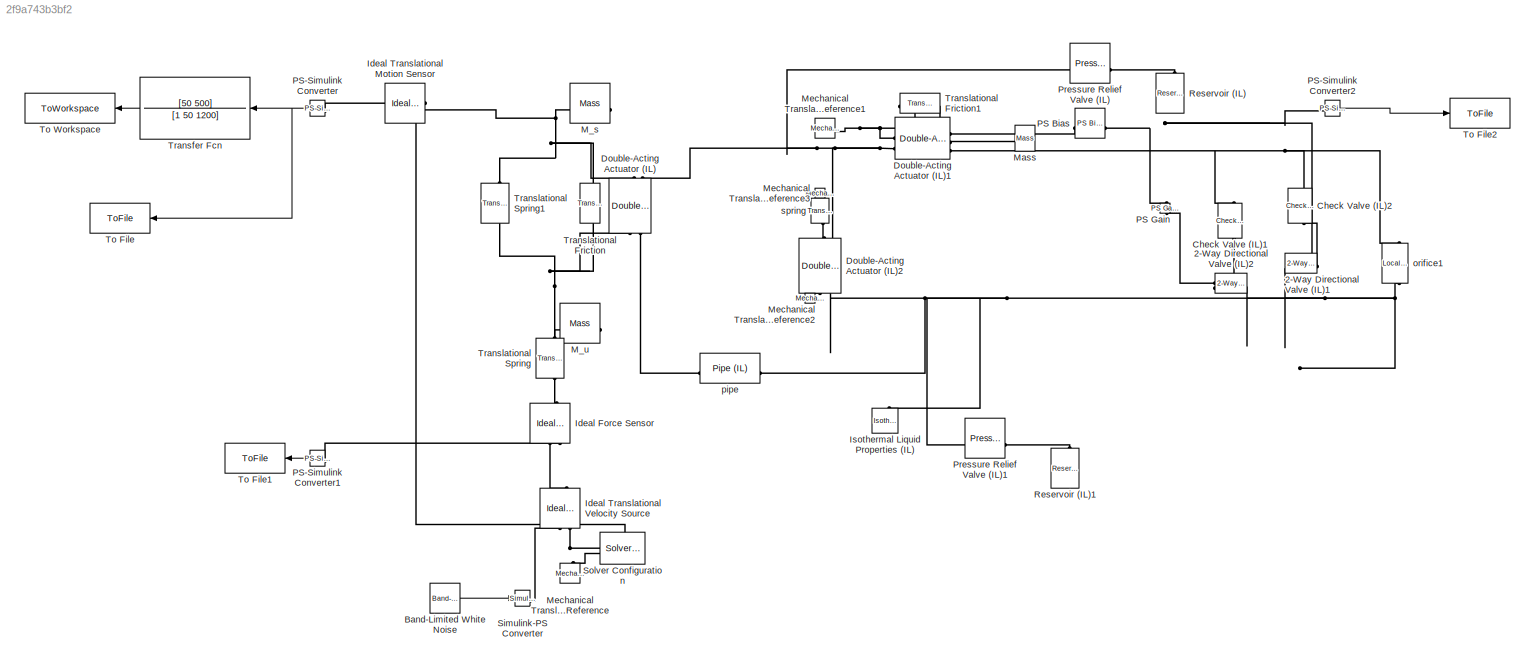
MODEL slx_2f9a743b3bf2
KIND model
CONFIG AbsTol = 1e-6
CONFIG EnableMultiTasking = off
CONFIG FixedStep = auto
CONFIG MaxStep = 1e-4
CONFIG MinStep = 1e-11
CONFIG RelTol = 1e-6
CONFIG SampleTimeConstraint = Unconstrained
CONFIG SolverName = ode23t
CONFIG StartTime = 0.0
CONFIG StopTime = 200
BLOCK [Reference] 2-Way Directional Valve (IL)1  REF=SimscapeFluids_lib/Isothermal Liquid/Valves & Orifices/Directional Control
Valves/2-Way Directional
Valve (IL)
  NameLocation = top
  SourceBlock = SimscapeFluids_lib/Isothermal Liquid/Valves & Orifices/Directional Control\nValves/2-Way Directional\nValve (IL)
  SourceType = 2-Way Directional\nValve (IL)
BLOCK [Reference] 2-Way Directional Valve (IL)2  REF=SimscapeFluids_lib/Isothermal Liquid/Valves & Orifices/Directional Control
Valves/2-Way Directional
Valve (IL)
  SourceBlock = SimscapeFluids_lib/Isothermal Liquid/Valves & Orifices/Directional Control\nValves/2-Way Directional\nValve (IL)
  SourceType = 2-Way Directional\nValve (IL)
BLOCK [Reference] Band-Limited White Noise  REF=simulink/Sources/Band-Limited
White Noise
  SourceBlock = simulink/Sources/Band-Limited\nWhite Noise
  SourceType = Band-Limited White Noise.
BLOCK [Reference] Check Valve (IL)1  REF=SimscapeFluids_lib/Isothermal Liquid/Valves & Orifices/Directional Control
Valves/Check Valve (IL)
  NameLocation = right
  SourceBlock = SimscapeFluids_lib/Isothermal Liquid/Valves & Orifices/Directional Control\nValves/Check Valve (IL)
  SourceType = Check Valve (IL)
BLOCK [Reference] Check Valve (IL)2  REF=SimscapeFluids_lib/Isothermal Liquid/Valves & Orifices/Directional Control
Valves/Check Valve (IL)
  NameLocation = left
  SourceBlock = SimscapeFluids_lib/Isothermal Liquid/Valves & Orifices/Directional Control\nValves/Check Valve (IL)
  SourceType = Check Valve (IL)
BLOCK [Reference] Double-Acting Actuator (IL)  REF=SimscapeFluids_lib/Isothermal Liquid/Actuators/Double-Acting
Actuator (IL)
  NameLocation = right
  SourceBlock = SimscapeFluids_lib/Isothermal Liquid/Actuators/Double-Acting\nActuator (IL)
  SourceType = Double-Acting\nActuator (IL)
BLOCK [Reference] Double-Acting Actuator (IL)1  REF=SimscapeFluids_lib/Isothermal Liquid/Actuators/Double-Acting
Actuator (IL)
  SourceBlock = SimscapeFluids_lib/Isothermal Liquid/Actuators/Double-Acting\nActuator (IL)
  SourceType = Double-Acting\nActuator (IL)
BLOCK [Reference] Double-Acting Actuator (IL)2  REF=SimscapeFluids_lib/Isothermal Liquid/Actuators/Double-Acting
Actuator (IL)
  NameLocation = right
  SourceBlock = SimscapeFluids_lib/Isothermal Liquid/Actuators/Double-Acting\nActuator (IL)
  SourceType = Double-Acting\nActuator (IL)
BLOCK [Reference] Ideal Force Sensor  REF=fl_lib/Mechanical/Mechanical Sensors/Ideal Force Sensor
  NameLocation = left
  SourceBlock = fl_lib/Mechanical/Mechanical Sensors/Ideal Force Sensor
  SourceType = Ideal Force Sensor
BLOCK [Reference] Ideal Translational Motion Sensor  REF=fl_lib/Mechanical/Mechanical Sensors/Ideal Translational
Motion Sensor
  NameLocation = top
  SourceBlock = fl_lib/Mechanical/Mechanical Sensors/Ideal Translational\nMotion Sensor
  SourceType = Ideal Translational\nMotion Sensor
BLOCK [Reference] Ideal Translational Velocity Source  REF=fl_lib/Mechanical/Mechanical Sources/Ideal Translational
Velocity Source
  NameLocation = right
  SourceBlock = fl_lib/Mechanical/Mechanical Sources/Ideal Translational\nVelocity Source
  SourceType = Ideal Translational\nVelocity Source
BLOCK [Reference] Isothermal Liquid Properties (IL)  REF=fl_lib/Isothermal Liquid/Utilities/Isothermal Liquid
Properties (IL)
  NameLocation = right
  SourceBlock = fl_lib/Isothermal Liquid/Utilities/Isothermal Liquid\nProperties (IL)
  SourceType = Isothermal Liquid\nProperties (IL)
BLOCK [Reference] M_s  REF=fl_lib/Mechanical/Translational
Elements/Mass
  NameLocation = top
  SourceBlock = fl_lib/Mechanical/Translational\nElements/Mass
  SourceType = Mass
BLOCK [Reference] M_u  REF=fl_lib/Mechanical/Translational
Elements/Mass
  NameLocation = top
  SourceBlock = fl_lib/Mechanical/Translational\nElements/Mass
  SourceType = Mass
BLOCK [Reference] Mass  REF=fl_lib/Mechanical/Translational
Elements/Mass
  NameLocation = top
  SourceBlock = fl_lib/Mechanical/Translational\nElements/Mass
  SourceType = Mass
BLOCK [Reference] Mechanical Translational Reference  REF=fl_lib/Mechanical/Translational
Elements/Mechanical
Translational
Reference
  NameLocation = right
  SourceBlock = fl_lib/Mechanical/Translational\nElements/Mechanical\nTranslational\nReference
  SourceType = Mechanical\nTranslational\nReference
BLOCK [Reference] Mechanical Translational Reference1  REF=fl_lib/Mechanical/Translational
Elements/Mechanical
Translational
Reference
  SourceBlock = fl_lib/Mechanical/Translational\nElements/Mechanical\nTranslational\nReference
  SourceType = Mechanical\nTranslational\nReference
BLOCK [Reference] Mechanical Translational Reference2  REF=fl_lib/Mechanical/Translational
Elements/Mechanical
Translational
Reference
  NameLocation = right
  SourceBlock = fl_lib/Mechanical/Translational\nElements/Mechanical\nTranslational\nReference
  SourceType = Mechanical\nTranslational\nReference
BLOCK [Reference] Mechanical Translational Reference3  REF=fl_lib/Mechanical/Translational
Elements/Mechanical
Translational
Reference
  NameLocation = left
  SourceBlock = fl_lib/Mechanical/Translational\nElements/Mechanical\nTranslational\nReference
  SourceType = Mechanical\nTranslational\nReference
BLOCK [Reference] PS Bias  REF=fl_lib/Physical Signals/Functions/PS Bias
  SourceBlock = fl_lib/Physical Signals/Functions/PS Bias
  SourceType = PS Bias
BLOCK [Reference] PS Gain  REF=fl_lib/Physical Signals/Functions/PS Gain
  NameLocation = left
  SourceBlock = fl_lib/Physical Signals/Functions/PS Gain
  SourceType = PS Gain
BLOCK [Reference] PS-Simulink Converter  REF=nesl_utility/PS-Simulink
Converter
  NameLocation = top
  SourceBlock = nesl_utility/PS-Simulink\nConverter
  SourceType = PS-Simulink\nConverter
BLOCK [Reference] PS-Simulink Converter1  REF=nesl_utility/PS-Simulink
Converter
  NameLocation = top
  SourceBlock = nesl_utility/PS-Simulink\nConverter
  SourceType = PS-Simulink\nConverter
BLOCK [Reference] PS-Simulink Converter2  REF=nesl_utility/PS-Simulink
Converter
  SourceBlock = nesl_utility/PS-Simulink\nConverter
  SourceType = PS-Simulink\nConverter
BLOCK [Reference] Pressure Relief Valve (IL)  REF=SimscapeFluids_lib/Isothermal Liquid/Valves & Orifices/Pressure Control
Valves/Pressure Relief
Valve (IL)
  SourceBlock = SimscapeFluids_lib/Isothermal Liquid/Valves & Orifices/Pressure Control\nValves/Pressure Relief\nValve (IL)
  SourceType = Pressure Relief\nValve (IL)
BLOCK [Reference] Pressure Relief Valve (IL)1  REF=SimscapeFluids_lib/Isothermal Liquid/Valves & Orifices/Pressure Control
Valves/Pressure Relief
Valve (IL)
  SourceBlock = SimscapeFluids_lib/Isothermal Liquid/Valves & Orifices/Pressure Control\nValves/Pressure Relief\nValve (IL)
  SourceType = Pressure Relief\nValve (IL)
BLOCK [Reference] Reservoir (IL)  REF=fl_lib/Isothermal Liquid/Elements/Reservoir (IL)
  NameLocation = right
  SourceBlock = fl_lib/Isothermal Liquid/Elements/Reservoir (IL)
  SourceType = Reservoir (IL)
BLOCK [Reference] Reservoir (IL)1  REF=fl_lib/Isothermal Liquid/Elements/Reservoir (IL)
  NameLocation = right
  SourceBlock = fl_lib/Isothermal Liquid/Elements/Reservoir (IL)
  SourceType = Reservoir (IL)
BLOCK [Reference] Simulink-PS Converter  REF=nesl_utility/Simulink-PS
Converter
  NameLocation = left
  SourceBlock = nesl_utility/Simulink-PS\nConverter
  SourceType = Simulink-PS\nConverter
BLOCK [Reference] Solver Configuration  REF=nesl_utility/Solver
Configuration
  NameLocation = top
  SourceBlock = nesl_utility/Solver\nConfiguration
  SourceType = Solver\nConfiguration
BLOCK [ToFile] To File
  Filename = acceleration.mat
  NameLocation = top
  SaveFormat = Timeseries
BLOCK [ToFile] To File1
  Filename = tire_force.mat
  NameLocation = top
  SaveFormat = Timeseries
BLOCK [ToFile] To File2
  Filename = input_displacement.mat
  SaveFormat = Timeseries
BLOCK [ToWorkspace] To Workspace
  MaxDataPoints = inf
  NameLocation = top
  SampleTime = -1
  SaveFormat = Timeseries
  VariableName = acceleration
BLOCK [TransferFcn] Transfer Fcn
  Denominator = [1 50 1200]
  NameLocation = top
  Numerator = [50 500]
BLOCK [Reference] Translational Friction  REF=fl_lib/Mechanical/Translational
Elements/Translational
Friction
  NameLocation = left
  SourceBlock = fl_lib/Mechanical/Translational\nElements/Translational\nFriction
  SourceType = Translational\nFriction
BLOCK [Reference] Translational Friction1  REF=fl_lib/Mechanical/Translational
Elements/Translational
Friction
  NameLocation = top
  SourceBlock = fl_lib/Mechanical/Translational\nElements/Translational\nFriction
  SourceType = Translational\nFriction
BLOCK [Reference] Translational Spring  REF=fl_lib/Mechanical/Translational
Elements/Translational Spring
  NameLocation = left
  SourceBlock = fl_lib/Mechanical/Translational\nElements/Translational Spring
  SourceType = Translational Spring
BLOCK [Reference] Translational Spring1  REF=fl_lib/Mechanical/Translational
Elements/Translational Spring
  NameLocation = left
  SourceBlock = fl_lib/Mechanical/Translational\nElements/Translational Spring
  SourceType = Translational Spring
BLOCK [Reference] orifice1  REF=fl_lib/Isothermal Liquid/Elements/Local Restriction
(IL)
  NameLocation = left
  SourceBlock = fl_lib/Isothermal Liquid/Elements/Local Restriction\n(IL)
  SourceType = Local Restriction\n(IL)
BLOCK [Reference] pipe  REF=fl_lib/Isothermal Liquid/Elements/Pipe (IL)
  SourceBlock = fl_lib/Isothermal Liquid/Elements/Pipe (IL)
  SourceType = Pipe (IL)
BLOCK [Reference] spring  REF=fl_lib/Mechanical/Translational
Elements/Translational Spring
  NameLocation = left
  SourceBlock = fl_lib/Mechanical/Translational\nElements/Translational Spring
  SourceType = Translational Spring
LINE Band-Limited White Noise:1 -> Simulink-PS Converter:1
LINE PS-Simulink Converter1:1 -> To File1:1
LINE PS-Simulink Converter2:1 -> To File2:1
NET PS-Simulink Converter:1 -> To File:1, Transfer Fcn:1
LINE Transfer Fcn:1 -> To Workspace:1
PNET net1: 2-Way Directional Valve (IL)1:LConn1 -- PS Bias:RConn1 -- PS Gain:LConn1 -- PS-Simulink Converter2:LConn1
PNET net2: 2-Way Directional Valve (IL)1:LConn2 -- 2-Way Directional Valve (IL)2:RConn1 -- Double-Acting Actuator (IL)2:LConn2 -- Isothermal Liquid Properties (IL):RConn1 -- Pressure Relief Valve (IL)1:LConn1 -- orifice1:RConn1 -- pipe:RConn1
PLINE 2-Way Directional Valve (IL)1:RConn1 -- Check Valve (IL)2:RConn1
PLINE 2-Way Directional Valve (IL)2:LConn1 -- PS Gain:RConn1
PLINE 2-Way Directional Valve (IL)2:LConn2 -- Check Valve (IL)1:LConn1
PNET net3: Check Valve (IL)1:RConn1 -- Check Valve (IL)2:LConn1 -- Double-Acting Actuator (IL)1:RConn3 -- orifice1:LConn1
PNET net4: Double-Acting Actuator (IL)1:LConn1 -- Mechanical Translational Reference1:LConn1 -- Translational Friction1:RConn1
PNET net5: Double-Acting Actuator (IL)1:LConn2 -- Double-Acting Actuator (IL)2:RConn3 -- Double-Acting Actuator (IL):RConn3 -- Pressure Relief Valve (IL):LConn1
PLINE Double-Acting Actuator (IL)1:RConn1 -- PS Bias:LConn1
PNET net6: Double-Acting Actuator (IL)1:RConn2 -- Mass:LConn1 -- Translational Friction1:LConn1
PLINE Double-Acting Actuator (IL)2:LConn1 -- Mechanical Translational Reference2:LConn1
PLINE Double-Acting Actuator (IL)2:RConn2 -- spring:RConn1
PNET net7: Double-Acting Actuator (IL):LConn1 -- M_u:LConn1 -- Translational Friction:RConn1 -- Translational Spring1:RConn1 -- Translational Spring:LConn1
PLINE Double-Acting Actuator (IL):LConn2 -- pipe:LConn1
PNET net8: Double-Acting Actuator (IL):RConn2 -- Ideal Translational Motion Sensor:LConn1 -- M_s:LConn1 -- Translational Friction:LConn1 -- Translational Spring1:LConn1
PLINE Ideal Force Sensor:LConn1 -- Translational Spring:RConn1
PLINE Ideal Force Sensor:RConn1 -- Ideal Translational Velocity Source:LConn1
PLINE Ideal Force Sensor:RConn2 -- PS-Simulink Converter1:LConn1
PNET net9: Ideal Translational Motion Sensor:RConn1 -- Ideal Translational Velocity Source:RConn2 -- Mechanical Translational Reference:LConn1 -- Solver Configuration:RConn1
PLINE Ideal Translational Motion Sensor:RConn2 -- PS-Simulink Converter:LConn1
PLINE Ideal Translational Velocity Source:RConn1 -- Simulink-PS Converter:RConn1
PLINE Mechanical Translational Reference3:LConn1 -- spring:LConn1
PLINE Pressure Relief Valve (IL)1:RConn1 -- Reservoir (IL)1:LConn1
PLINE Pressure Relief Valve (IL):RConn1 -- Reservoir (IL):LConn1
note: NET lines group one-source signal fan-out (src -> all destinations, sorted); 1:1 wires keep LINE; PNET lines group multi-terminal physical nets as a canonical sorted terminal list (undirected conserving connections); 2-terminal nets keep the pairwise PLINE form
